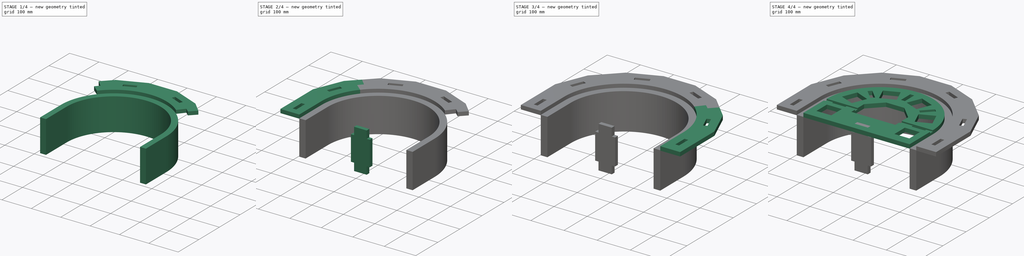
[diagram: build sequence overview — one tinted view per stage of 4, left to right]
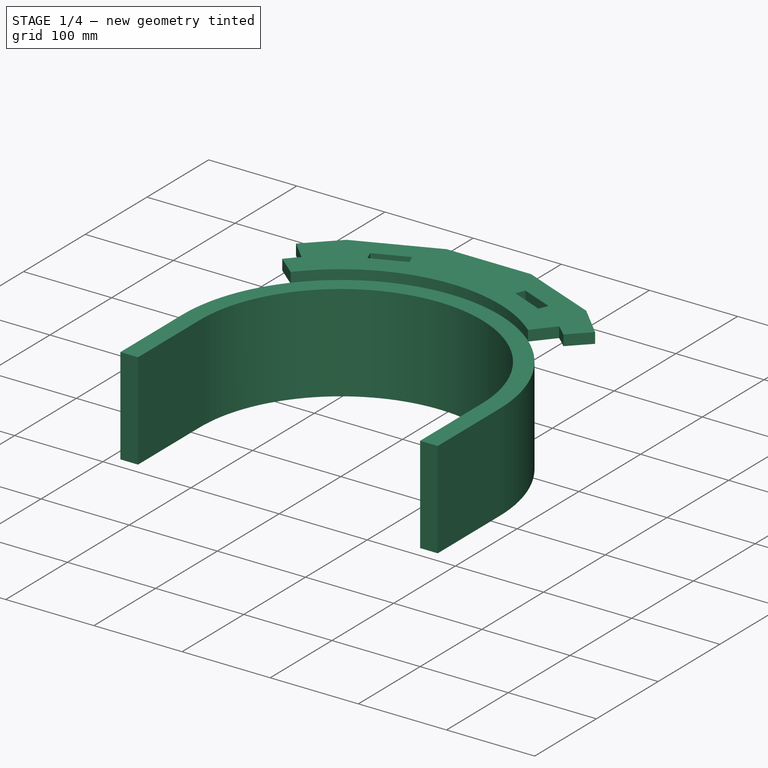
[diagram: stage 1 of 4 — iso view after this stage's code; geometry added in this stage tinted green]
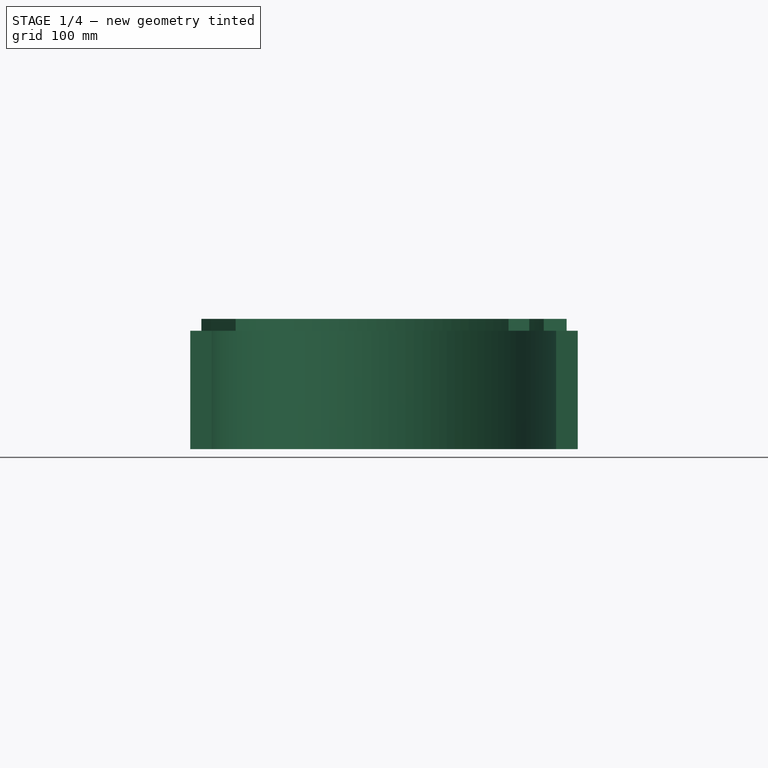
[diagram: stage 1 of 4 — front view after this stage's code; geometry added in this stage tinted green]
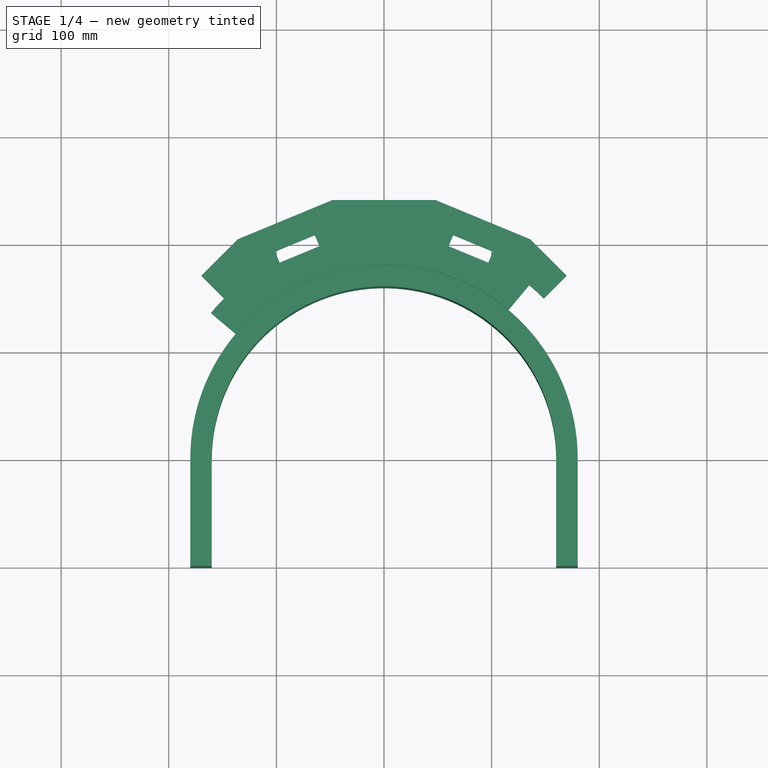
[diagram: stage 1 of 4 — top view after this stage's code; geometry added in this stage tinted green]
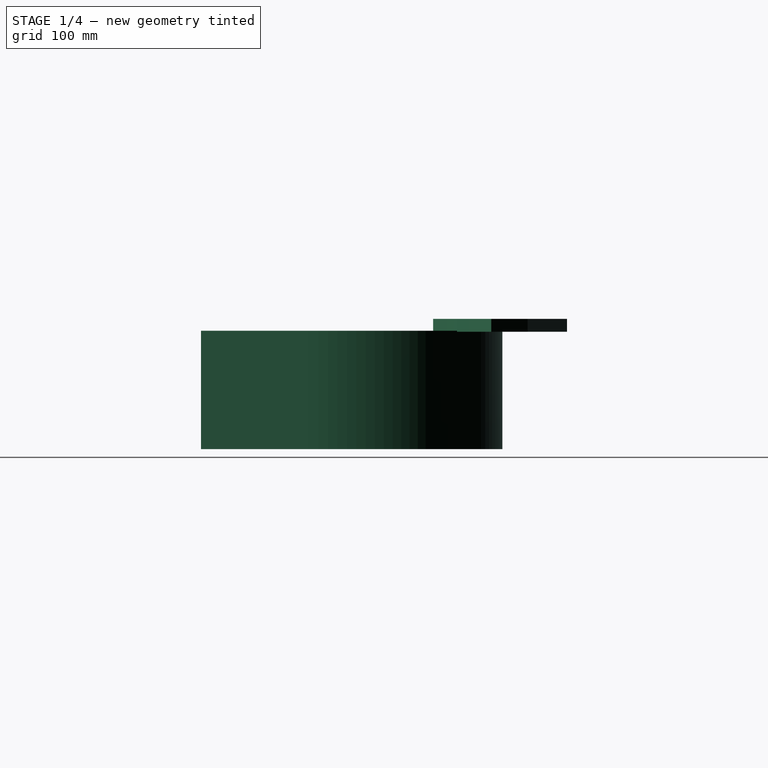
[diagram: stage 1 of 4 — right view after this stage's code; geometry added in this stage tinted green]
FCSTD DOCUMENT  (FreeCAD 0.21R30193 (Git))
Label: BendingFixture
License: All rights reserved
LicenseURL: http://en.wikipedia.org/wiki/All_rights_reserved
objects: Part::Feature×26, Part::Extrusion×10, Sketcher::SketchObject×8, App::DocumentObjectGroup×2, Part::Cut×1
note: 45 computed .brp shape members not serialized (recipe doc carries the construction recipe); baked Part::Feature solids carry a one-line shape summary decoded from their .brp

FEATURE [Part::Extrusion] Extrude007  label="FinishedPart"
  Base = -> Sketch
  Dir = (0,0,1)
  DirMode = 2
  FaceMakerClass = Part::FaceMakerBullseye
  LengthFwd = 110
  LengthRev = 0
  Placement = pos=(0,0,-103) rot=(0,0,1;0rad)
  Solid = true
  Symmetric = false
FEATURE [Part::Extrusion] Extrude008  label="OuterTemplate3"
  Base = -> Sketch008
  Dir = (0,0,1)
  DirMode = 2
  FaceMakerClass = Part::FaceMakerBullseye
  LengthFwd = 12
  LengthRev = 0
  Placement = pos=(0,0,6) rot=(0,0,1;0.785398rad)
  Solid = true
  Symmetric = false
FEATURE [Part::Extrusion] Extrude009  label="OuterTemplate4"
  Base = -> Sketch008
  Dir = (0,0,1)
  DirMode = 2
  FaceMakerClass = Part::FaceMakerBullseye
  LengthFwd = 12
  LengthRev = 0
  Placement = pos=(0,0,6) rot=(0,0,1;1.5708rad)
  Solid = true
  Symmetric = false
FEATURE [App::DocumentObjectGroup] Group  label="Duplicates"
  Group = -> [Extrude008,Extrude009]
FEATURE [Part::Feature] Extrude002001  label="OuterTemplate007"
  Placement = pos=(0,0,-6) rot=(0,0,1;0rad)
  shape: bbox 60.68 x 118.3 x 12 mm, 13 faces (baked)
FEATURE [Part::Feature] Extrude003001  label="OuterTemplate008"
  Placement = pos=(0,0,-6) rot=(0,0,1;0rad)
  shape: bbox 124.3 x 169.7 x 12 mm, 17 faces (baked)
FEATURE [Part::Feature] Extrude008001  label="OuterTemplate009"
  Placement = pos=(0,0,-6) rot=(0,0,1;0.785398rad)
  shape: bbox 188 x 102.1 x 12 mm, 17 faces (baked)
FEATURE [Part::Feature] Extrude009001  label="OuterTemplate010"
  Placement = pos=(0,0,-6) rot=(0,0,1;1.5708rad)
  shape: bbox 169.7 x 124.3 x 12 mm, 17 faces (baked)
FEATURE [Part::Feature] Extrude004001  label="OuterTemplate011"
  Placement = pos=(0,0,-6) rot=(0,0,1;0rad)
  shape: bbox 102.1 x 188.1 x 12 mm, 18 faces (baked)
FEATURE [Part::Feature] Extrude005001  label="OuterTemplate012"
  Placement = pos=(0,0,-6) rot=(0,0,1;0rad)
  shape: bbox 60 x 100 x 12 mm, 12 faces (baked)
FEATURE [Part::Feature] Extrude002002  label="OuterTemplate013"
  Placement = pos=(0,0,-97) rot=(0,0,1;0rad)
  shape: bbox 60.68 x 118.3 x 12 mm, 13 faces (baked)
FEATURE [Part::Feature] Extrude003002  label="OuterTemplate014"
  Placement = pos=(0,0,-97) rot=(0,0,1;0rad)
  shape: bbox 124.3 x 169.7 x 12 mm, 17 faces (baked)
FEATURE [Part::Feature] Extrude008002  label="OuterTemplate015"
  Placement = pos=(0,0,-97) rot=(0,0,1;0.785398rad)
  shape: bbox 188 x 102.1 x 12 mm, 17 faces (baked)
FEATURE [Part::Feature] Extrude009002  label="OuterTemplate016"
  Placement = pos=(0,0,-97) rot=(0,0,1;1.5708rad)
  shape: bbox 169.7 x 124.3 x 12 mm, 17 faces (baked)
FEATURE [Part::Feature] Extrude004002  label="OuterTemplate017"
  Placement = pos=(0,0,-97) rot=(0,0,1;0rad)
  shape: bbox 102.1 x 188.1 x 12 mm, 18 faces (baked)
FEATURE [Part::Feature] Extrude005002  label="OuterTemplate018"
  Placement = pos=(0,0,-97) rot=(0,0,1;0rad)
  shape: bbox 60 x 100 x 12 mm, 12 faces (baked)
FEATURE [Part::Feature] Extrude002003  label="OuterTemplate019"
  Placement = pos=(0,0,-109) rot=(0,0,1;0rad)
  shape: bbox 60.68 x 118.3 x 12 mm, 13 faces (baked)
FEATURE [Part::Feature] Extrude003003  label="OuterTemplate020"
  Placement = pos=(0,0,-109) rot=(0,0,1;0rad)
  shape: bbox 124.3 x 169.7 x 12 mm, 17 faces (baked)
FEATURE [Part::Feature] Extrude008003  label="OuterTemplate021"
  Placement = pos=(0,0,-109) rot=(0,0,1;0.785398rad)
  shape: bbox 188 x 102.1 x 12 mm, 17 faces (baked)
FEATURE [Part::Feature] Extrude009003  label="OuterTemplate022"
  Placement = pos=(0,0,-109) rot=(0,0,1;1.5708rad)
  shape: bbox 169.7 x 124.3 x 12 mm, 17 faces (baked)
FEATURE [Part::Feature] Extrude004003  label="OuterTemplate023"
  Placement = pos=(0,0,-109) rot=(0,0,1;0rad)
  shape: bbox 102.1 x 188.1 x 12 mm, 18 faces (baked)
FEATURE [Part::Feature] Extrude005003  label="OuterTemplate024"
  Placement = pos=(0,0,-109) rot=(0,0,1;0rad)
  shape: bbox 60 x 100 x 12 mm, 12 faces (baked)
FEATURE [Part::Feature] Extrude006001  label="VerticalSpacer001"
  Placement = pos=(-120,-6,-45.5) rot=(0,0,1;0rad)
  shape: bbox 60 x 12 x 127 mm, 14 faces (baked)
FEATURE [Part::Feature] Extrude006002  label="VerticalSpacer002"
  Placement = pos=(120,-6,-45.5) rot=(0,0,1;0rad)
  shape: bbox 60 x 12 x 127 mm, 14 faces (baked)
FEATURE [Part::Feature] Extrude006003  label="VerticalSpacer003"
  Placement = pos=(84.75,84.75,-45.5) rot=(0,0,1;0.785398rad)
  shape: bbox 50.91 x 50.91 x 127 mm, 14 faces (baked)
FEATURE [Part::Feature] Extrude006004  label="VerticalSpacer004"
  Placement = pos=(-84.75,84.75,-45.5) rot=(0,0,1;-0.785398rad)
  shape: bbox 50.91 x 50.91 x 127 mm, 14 faces (baked)
FEATURE [Part::Feature] Extrude006005  label="VerticalSpacer005"
  Placement = pos=(0,120,-45.5) rot=(0,0,1;1.5708rad)
  shape: bbox 12 x 60 x 127 mm, 14 faces (baked)
FEATURE [Part::Feature] Cut001  label="InnerTemplate001"
  Placement = pos=(0,0,-6) rot=(0,0,1;0rad)
  shape: bbox 320 x 260 x 12 mm, 81 faces (baked)
FEATURE [Part::Feature] Cut002  label="InnerTemplate002"
  Placement = pos=(0,0,-85) rot=(0,1,0;3.14159rad)
  shape: bbox 320 x 260 x 12 mm, 81 faces (baked)
FEATURE [Part::Feature] Cut003  label="InnerTemplate003"
  Placement = pos=(0,0,-97) rot=(0,1,0;3.14159rad)
  shape: bbox 320 x 260 x 12 mm, 81 faces (baked)
FEATURE [App::DocumentObjectGroup] Group001  label="Copies"
  Group = -> [Extrude002001,Extrude003001,Extrude008001,Extrude009001,Extrude004001,Extrude005001,Extrude002002,Extrude003002,Extrude008002,Extrude009002,Extrude004002,Extrude005002,Extrude002003,Extrude003003,Extrude008003,Extrude009003,Extrude004003,Extrude005003,Extrude006001,Extrude006002,Extrude006003,Extrude006004,Extrude006005,Cut001,Cut002,Cut003]
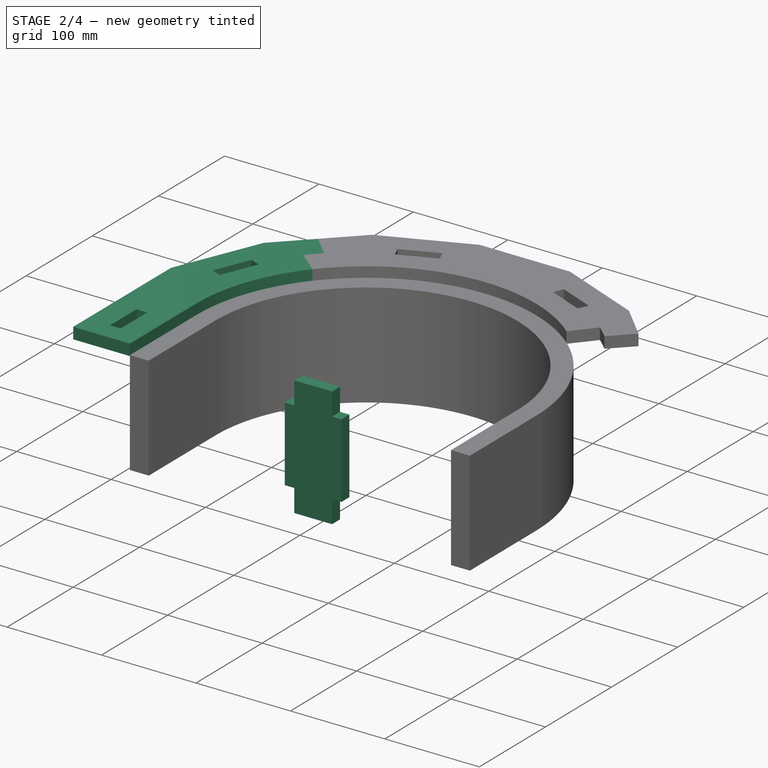
[diagram: stage 2 of 4 — iso view after this stage's code; geometry added in this stage tinted green]
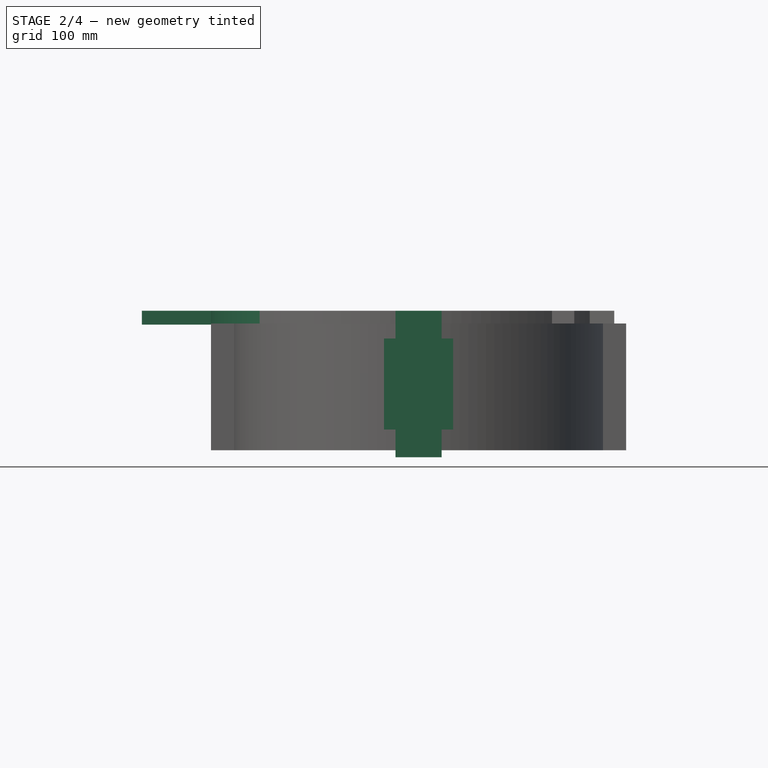
[diagram: stage 2 of 4 — front view after this stage's code; geometry added in this stage tinted green]
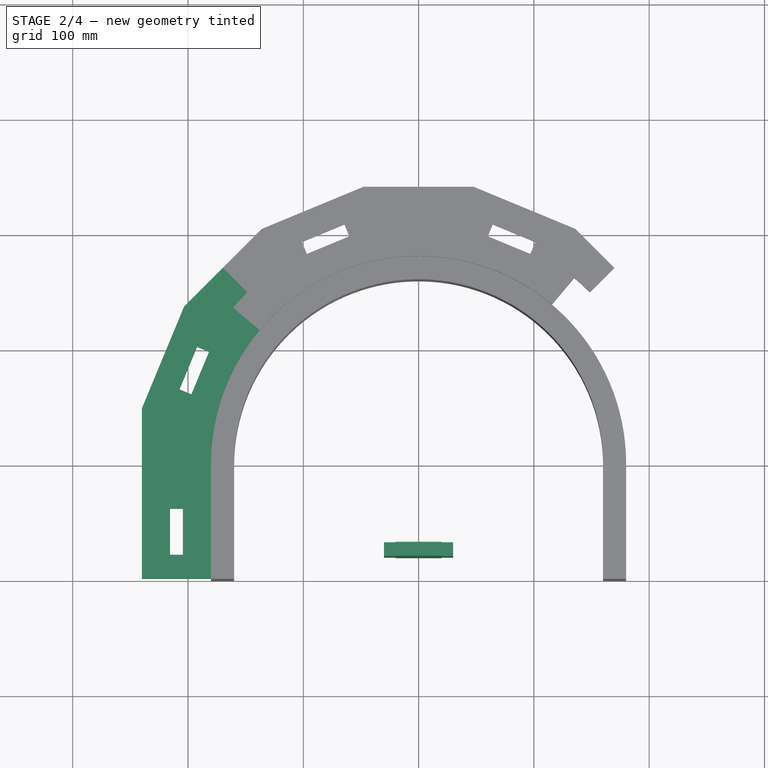
[diagram: stage 2 of 4 — top view after this stage's code; geometry added in this stage tinted green]
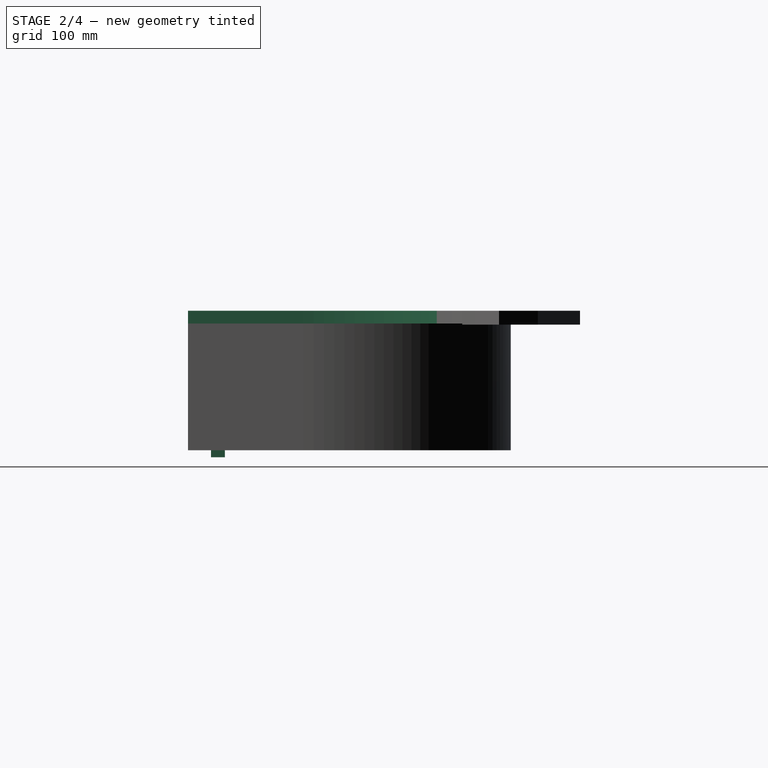
[diagram: stage 2 of 4 — right view after this stage's code; geometry added in this stage tinted green]
FEATURE [Part::Extrusion] Extrude004  label="OuterTemplate5"
  Base = -> Sketch011
  Dir = (0,0,1)
  DirMode = 2
  FaceMakerClass = Part::FaceMakerBullseye
  LengthFwd = 12
  LengthRev = 0
  Placement = pos=(0,0,6) rot=(0,0,1;0rad)
  Solid = true
  Symmetric = false
FEATURE [Part::Extrusion] Extrude005  label="OuterTemplate6"
  Base = -> Sketch006
  Dir = (0,0,1)
  DirMode = 2
  FaceMakerClass = Part::FaceMakerBullseye
  LengthFwd = 12
  LengthRev = 0
  Placement = pos=(0,0,6) rot=(0,0,1;0rad)
  Solid = true
  Symmetric = false
FEATURE [Part::Extrusion] Extrude006  label="VerticalSpacer"
  Base = -> Sketch013
  Dir = (0,-1,2e-16)
  DirMode = 2
  FaceMakerClass = Part::FaceMakerBullseye
  LengthFwd = 12
  LengthRev = 0
  Placement = pos=(0,-74,-45.5) rot=(0,0,1;0rad)
  Solid = true
  Symmetric = true
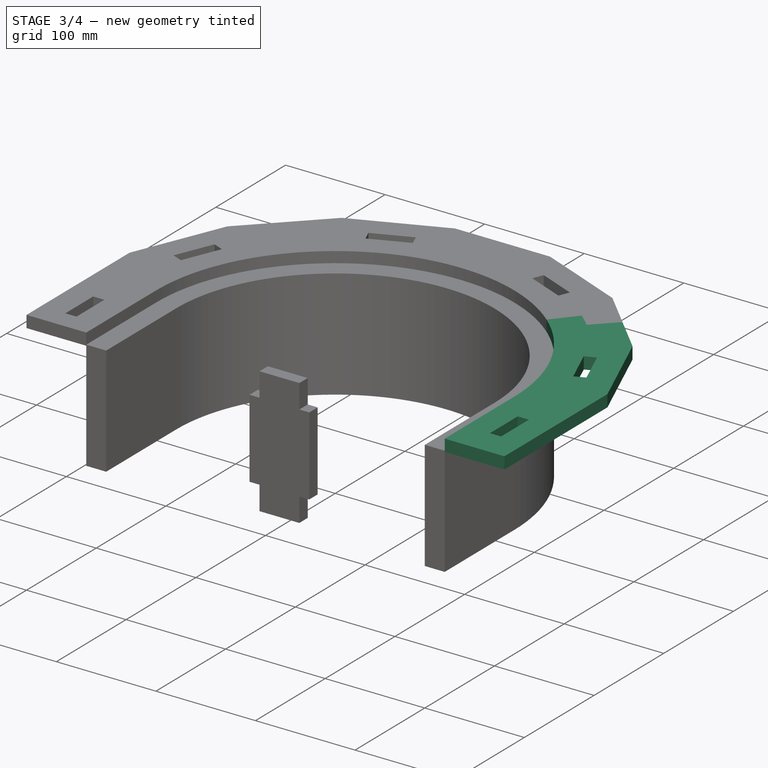
[diagram: stage 3 of 4 — iso view after this stage's code; geometry added in this stage tinted green]
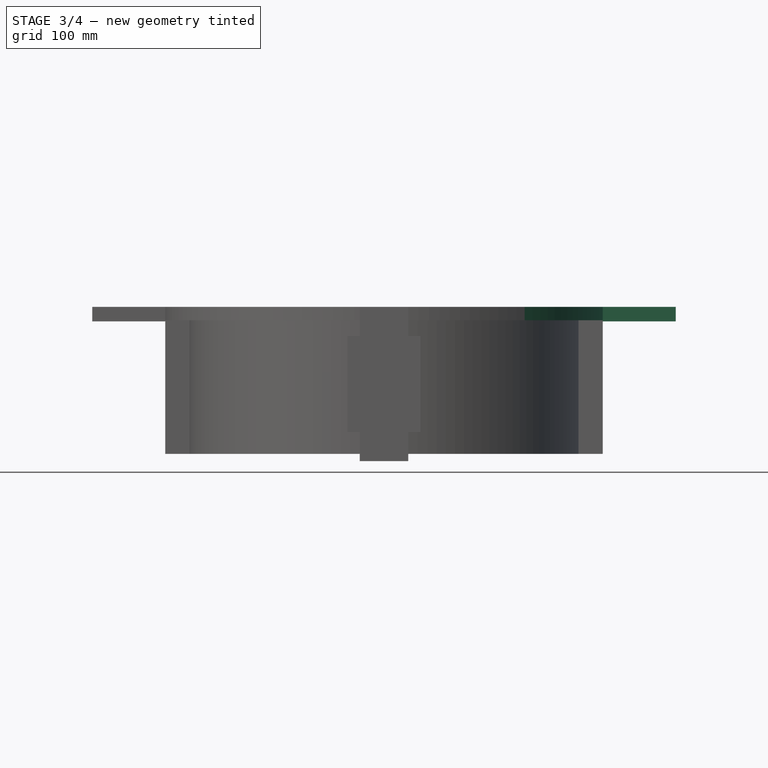
[diagram: stage 3 of 4 — front view after this stage's code; geometry added in this stage tinted green]
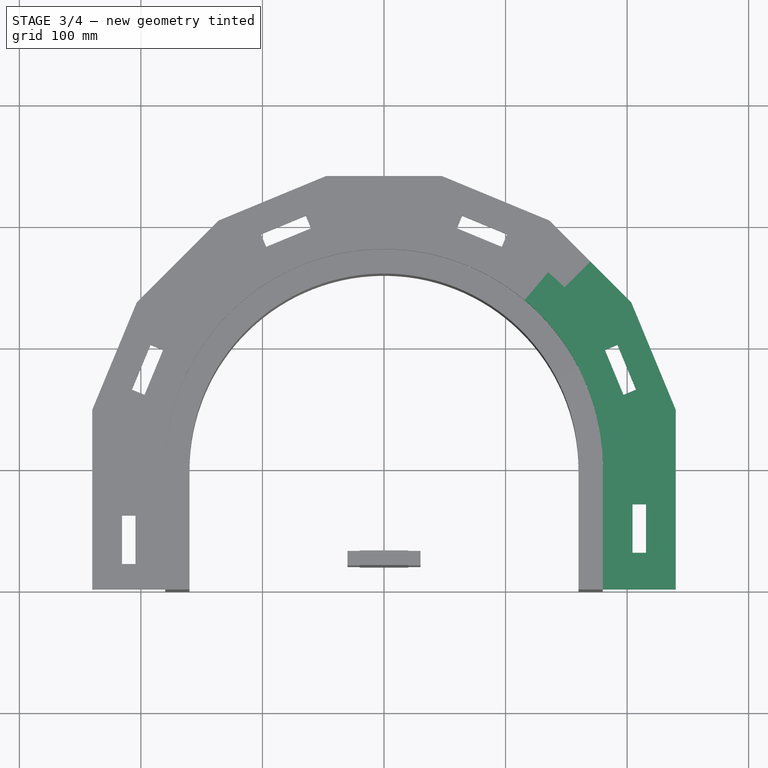
[diagram: stage 3 of 4 — top view after this stage's code; geometry added in this stage tinted green]
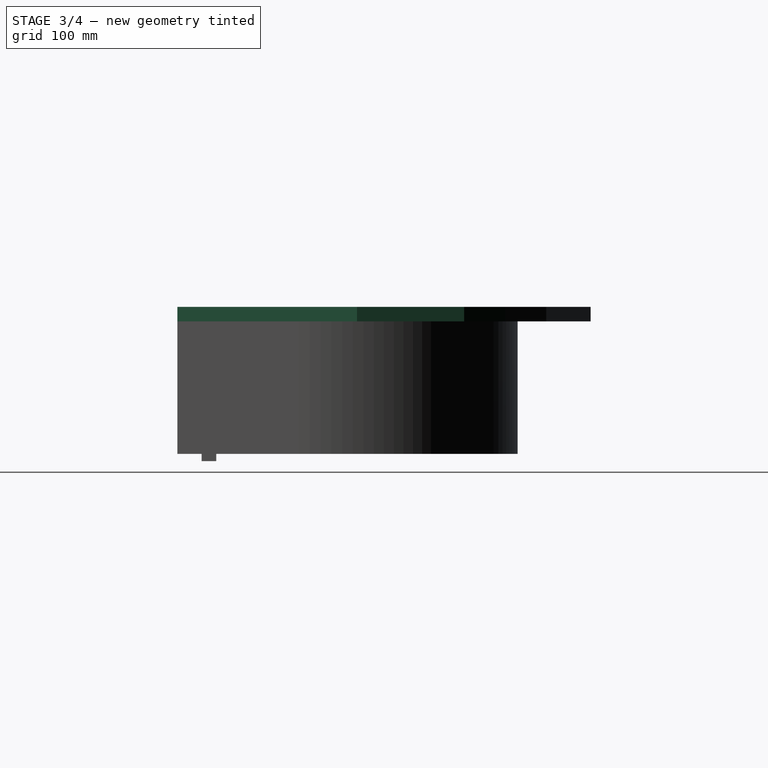
[diagram: stage 3 of 4 — right view after this stage's code; geometry added in this stage tinted green]
FEATURE [Part::Extrusion] Extrude002  label="OuterTemplate1"
  Base = -> Sketch001
  Dir = (0,0,1)
  DirMode = 2
  FaceMakerClass = Part::FaceMakerBullseye
  LengthFwd = 12
  LengthRev = 0
  Placement = pos=(0,0,6) rot=(0,0,1;0rad)
  Solid = true
  Symmetric = false
FEATURE [Part::Extrusion] Extrude003  label="OuterTemplate2"
  Base = -> Sketch008
  Dir = (0,0,1)
  DirMode = 2
  FaceMakerClass = Part::FaceMakerBullseye
  LengthFwd = 12
  LengthRev = 0
  Placement = pos=(0,0,6) rot=(0,0,1;0rad)
  Solid = true
  Symmetric = false
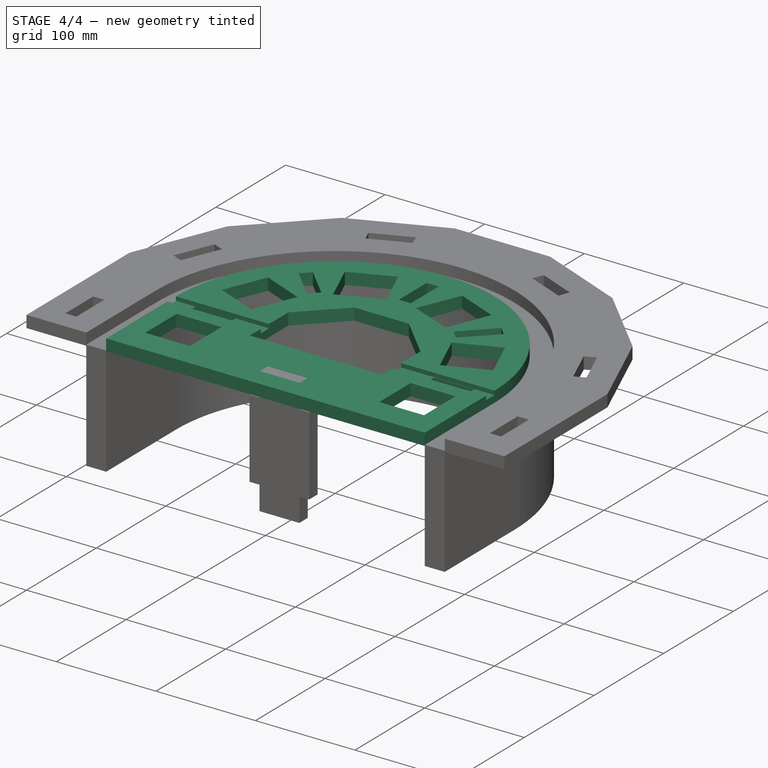
[diagram: stage 4 of 4 — iso view after this stage's code; geometry added in this stage tinted green]
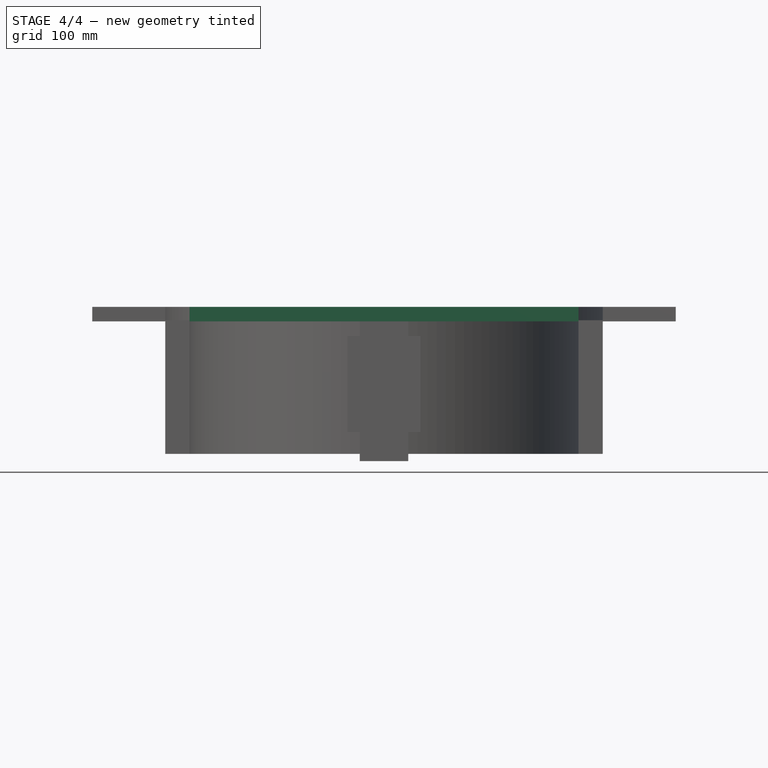
[diagram: stage 4 of 4 — front view after this stage's code; geometry added in this stage tinted green]
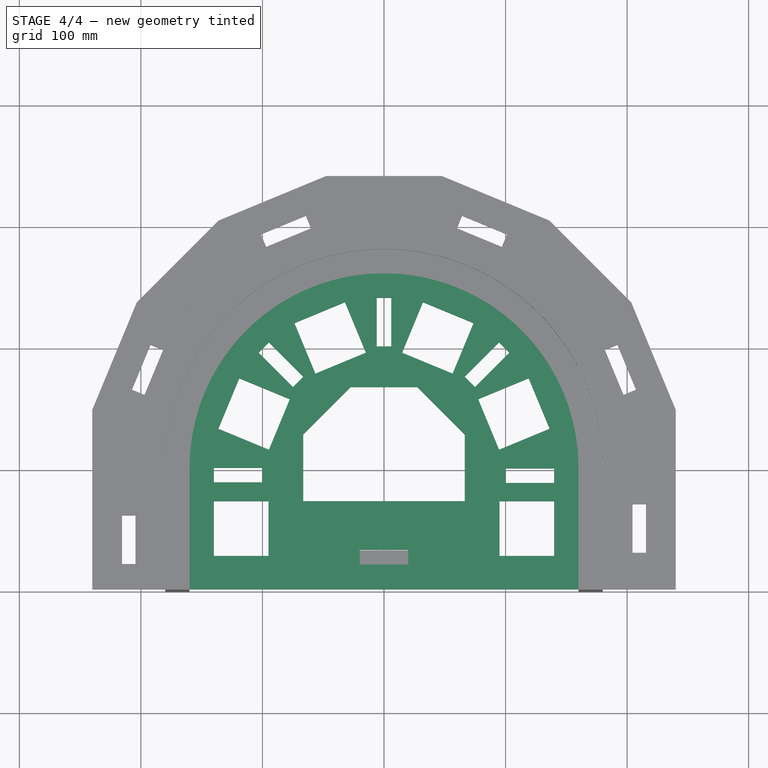
[diagram: stage 4 of 4 — top view after this stage's code; geometry added in this stage tinted green]
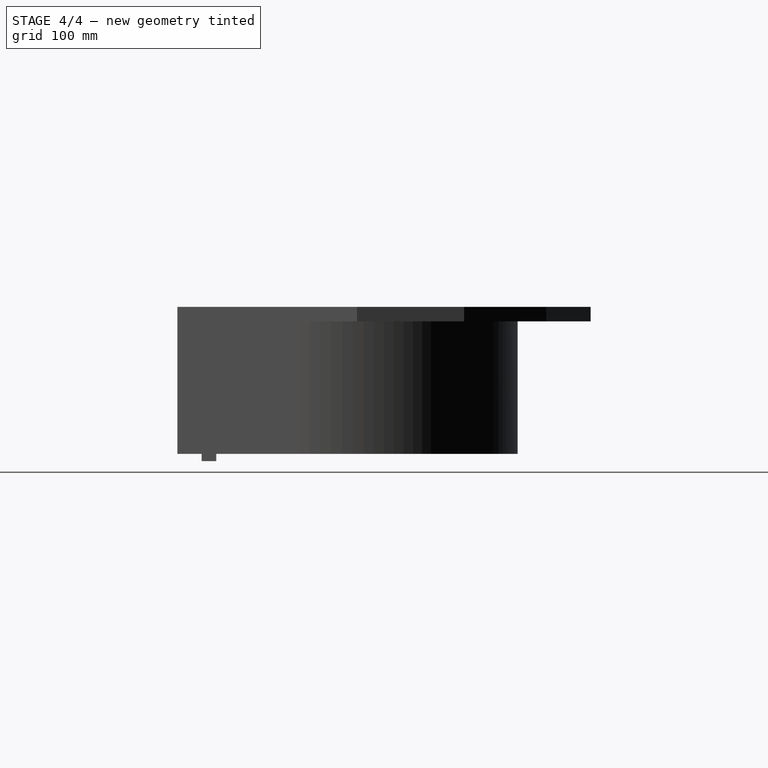
[diagram: stage 4 of 4 — right view after this stage's code; geometry added in this stage tinted green]
FEATURE [Sketcher::SketchObject] Sketch  label="FinishedPartShape"
  FullyConstrained = true
  sketch-geometry (8):
    g0: ArcOfCircle CenterX=0 CenterY=0 CenterZ=0 NormalX=0 NormalY=0 NormalZ=1 AngleXU=0 Radius=160 StartAngle=0 EndAngle=3.14159
    g1: ArcOfCircle CenterX=0 CenterY=0 CenterZ=0 NormalX=0 NormalY=0 NormalZ=1 AngleXU=0 Radius=180 StartAngle=0 EndAngle=3.14159
    g2: LineSegment StartX=-180 StartY=2.2e-14 StartZ=0 EndX=-180 EndY=-100 EndZ=0
    g3: LineSegment StartX=-160 StartY=0 StartZ=0 EndX=-160 EndY=-100 EndZ=0
    g4: LineSegment StartX=-180 StartY=-100 StartZ=0 EndX=-160 EndY=-100 EndZ=0
    g5: LineSegment StartX=160 StartY=0 StartZ=0 EndX=160 EndY=-100 EndZ=0
    g6: LineSegment StartX=180 StartY=0 StartZ=0 EndX=180 EndY=-100 EndZ=0
    g7: LineSegment StartX=180 StartY=-100 StartZ=0 EndX=160 EndY=-100 EndZ=0
  constraints (24):
    c: Coincident(g0,g-1)
    c: PointOnObject(g0,g-1)
    c: PointOnObject(g0,g-1)
    c: Coincident(g1,g0)
    c: PointOnObject(g1,g-1)
    c: PointOnObject(g1,g-1)
    c: Diameter(g1) = 360
    c: Diameter(g0) = 320
    c: Coincident(g2,g1)
    c: Vertical(g2)
    c: Coincident(g3,g0)
    c: Vertical(g3)
    c: Coincident(g4,g2)
    c: Coincident(g4,g3)
    c: Horizontal(g4)
    c: Coincident(g5,g0)
    c: Vertical(g5)
    c: Coincident(g6,g1)
    c: Vertical(g6)
    c: Coincident(g7,g6)
    c: Coincident(g7,g5)
    c: Horizontal(g7)
    c: Horizontal(g5,g3)
    c: DistanceY(g5,g0) = 100
FEATURE [Sketcher::SketchObject] Sketch001  label="OuterTemplate1Shape"
  FullyConstrained = true
  sketch-geometry (16):
    g0: LineSegment StartX=180 StartY=-100 StartZ=0 EndX=180 EndY=0 EndZ=0
    g1: LineSegment StartX=180 StartY=-100 StartZ=0 EndX=240 EndY=-100 EndZ=0
    g2: LineSegment StartX=240 StartY=-100 StartZ=0 EndX=240 EndY=0 EndZ=0
    g3: ArcOfCircle CenterX=0 CenterY=0 CenterZ=0 NormalX=0 NormalY=0 NormalZ=1 AngleXU=0 Radius=180 StartAngle=0 EndAngle=0.0872665
    g4: LineSegment StartX=240 StartY=0 StartZ=0 EndX=210 EndY=0 EndZ=0
    g5: ArcOfCircle CenterX=0 CenterY=0 CenterZ=0 NormalX=0 NormalY=0 NormalZ=1 AngleXU=0 Radius=210 StartAngle=0 EndAngle=0.0872665
    g6: LineSegment StartX=179.315 StartY=15.688 StartZ=0 EndX=209.201 EndY=18.3027 EndZ=0
    g7: LineSegment StartX=0 StartY=0 StartZ=0 EndX=179.315 EndY=15.688 EndZ=0
    g8: LineSegment StartX=204.4 StartY=-30 StartZ=0 EndX=215.6 EndY=-30 EndZ=0
    g9: LineSegment StartX=215.6 StartY=-30 StartZ=0 EndX=215.6 EndY=-70 EndZ=0
    g10: LineSegment StartX=215.6 StartY=-70 StartZ=0 EndX=204.4 EndY=-70 EndZ=0
    g11: LineSegment StartX=204.4 StartY=-70 StartZ=0 EndX=204.4 EndY=-30 EndZ=0
    g12: LineSegment StartX=180 StartY=-70 StartZ=0 EndX=204.4 EndY=-70 EndZ=0
    g13: LineSegment StartX=215.6 StartY=-70 StartZ=0 EndX=240 EndY=-70 EndZ=0
    g14: LineSegment StartX=215.6 StartY=-30 StartZ=0 EndX=215.6 EndY=0 EndZ=0
    g15: LineSegment StartX=215.6 StartY=-70 StartZ=0 EndX=215.6 EndY=-100 EndZ=0
  constraints (47):
    c: Vertical(g0)
    c: Coincident(g1,g0)
    c: Horizontal(g1)
    c: Coincident(g2,g1)
    c: PointOnObject(g2,g-1)
    c: Vertical(g2)
    c: PointOnObject(g0,g-1)
    c: Coincident(g3,g-1)
    c: Coincident(g3,g0)
    c: Coincident(g4,g2)
    c: PointOnObject(g4,g-1)
    c: Coincident(g5,g3)
    c: Coincident(g5,g4)
    c: Coincident(g6,g3)
    c: Coincident(g6,g5)
    c: Coincident(g7,g3)
    c: Coincident(g7,g3)
    c: Parallel(g6,g7)
    c: Angle(g-1,g7) = 0.0872665
    c: Radius(g3) = 180
    c: Radius(g5) = 210
    c: DistanceX(g3,g2) = 240
    c: DistanceY(g0,g3) = 100
    c: Coincident(g8,g9)
    c: Coincident(g9,g10)
    c: Coincident(g10,g11)
    c: Coincident(g11,g8)
    c: Horizontal(g8)
    c: Horizontal(g10)
    c: Vertical(g9)
    c: Vertical(g11)
    c: Distance(g10) = 11.2
    c: PointOnObject(g12,g0)
    c: Coincident(g12,g10)
    c: Horizontal(g12)
    c: Coincident(g13,g9)
    c: PointOnObject(g13,g2)
    c: Horizontal(g13)
    c: Coincident(g14,g8)
    c: PointOnObject(g14,g4)
    c: Vertical(g14)
    c: Coincident(g15,g9)
    c: PointOnObject(g15,g1)
    c: Vertical(g15)
    c: Equal(g12,g13)
    c: Equal(g14,g15)
    c: Distance(g9) = 40
FEATURE [Sketcher::SketchObject] Sketch006  label="OuterTemplate6Shape"
  FullyConstrained = true
  sketch-geometry (15):
    g0: LineSegment StartX=-240 StartY=0 StartZ=0 EndX=-240 EndY=-100 EndZ=0
    g1: LineSegment StartX=-240 StartY=-100 StartZ=0 EndX=-180 EndY=-100 EndZ=0
    g2: LineSegment StartX=-180 StartY=-100 StartZ=0 EndX=-180 EndY=-18.3726 EndZ=0
    g3: LineSegment StartX=-180 StartY=-18.3726 StartZ=0 EndX=-210 EndY=-18.3726 EndZ=0
    g4: LineSegment StartX=-210 StartY=-18.3726 StartZ=0 EndX=-210 EndY=0 EndZ=0
    g5: LineSegment StartX=-210 StartY=0 StartZ=0 EndX=-240 EndY=0 EndZ=0
    g6: LineSegment StartX=-210 StartY=-18.3726 StartZ=0 EndX=0 EndY=0 EndZ=0
    g7: LineSegment StartX=-215.6 StartY=-39.1863 StartZ=0 EndX=-204.4 EndY=-39.1863 EndZ=0
    g8: LineSegment StartX=-204.4 StartY=-39.1863 StartZ=0 EndX=-204.4 EndY=-79.1863 EndZ=0
    g9: LineSegment StartX=-204.4 StartY=-79.1863 StartZ=0 EndX=-215.6 EndY=-79.1863 EndZ=0
    g10: LineSegment StartX=-215.6 StartY=-79.1863 StartZ=0 EndX=-215.6 EndY=-39.1863 EndZ=0
    g11: LineSegment StartX=-204.4 StartY=-39.1863 StartZ=0 EndX=-204.4 EndY=-18.3726 EndZ=0
    g12: LineSegment StartX=-204.4 StartY=-79.1863 StartZ=0 EndX=-204.4 EndY=-100 EndZ=0
    g13: LineSegment StartX=-215.6 StartY=-79.1863 StartZ=0 EndX=-240 EndY=-79.1863 EndZ=0
    g14: LineSegment StartX=-204.4 StartY=-79.1863 StartZ=0 EndX=-180 EndY=-79.1863 EndZ=0
  constraints (44):
    c: Vertical(g0)
    c: Coincident(g1,g0)
    c: Horizontal(g1)
    c: Coincident(g2,g1)
    c: Vertical(g2)
    c: Coincident(g3,g2)
    c: Horizontal(g3)
    c: Coincident(g4,g3)
    c: PointOnObject(g4,g-1)
    c: Vertical(g4)
    c: Coincident(g5,g4)
    c: Coincident(g5,g0)
    c: PointOnObject(g0,g-1)
    c: DistanceX(g2,g-1) = 180
    c: DistanceX(g0,g-1) = 240
    c: DistanceY(g1,g-1) = 100
    c: Coincident(g6,g3)
    c: Coincident(g6,g-1)
    c: Angle(g6,g-1) = 3.05433
    c: DistanceX(g4,g6) = 210
    c: Coincident(g7,g8)
    c: Coincident(g8,g9)
    c: Coincident(g9,g10)
    c: Coincident(g10,g7)
    c: Horizontal(g7)
    c: Horizontal(g9)
    c: Vertical(g8)
    c: Vertical(g10)
    c: Coincident(g11,g7)
    c: PointOnObject(g11,g3)
    c: Vertical(g11)
    c: Coincident(g12,g8)
    c: PointOnObject(g12,g1)
    c: Vertical(g12)
    c: Coincident(g13,g9)
    c: PointOnObject(g13,g0)
    c: Horizontal(g13)
    c: Coincident(g14,g8)
    c: PointOnObject(g14,g2)
    c: Horizontal(g14)
    c: Equal(g11,g12)
    c: Equal(g14,g13)
    c: Distance(g9) = 11.2
    c: Distance(g8) = 40
FEATURE [Sketcher::SketchObject] Sketch007  label="InnerTemplateBaseShape"
  FullyConstrained = true
  sketch-geometry (81):
    g0: ArcOfCircle CenterX=0 CenterY=0 CenterZ=0 NormalX=0 NormalY=0 NormalZ=1 AngleXU=0 Radius=160 StartAngle=0 EndAngle=3.14159
    g1: LineSegment StartX=-160 StartY=0 StartZ=0 EndX=-160 EndY=-100 EndZ=0
    g2: LineSegment StartX=-160 StartY=-100 StartZ=0 EndX=160 EndY=-100 EndZ=0
    g3: LineSegment StartX=160 StartY=-100 StartZ=0 EndX=160 EndY=0 EndZ=0
    g4: LineSegment StartX=-140 StartY=-72.5 StartZ=0 EndX=-95 EndY=-72.5 EndZ=0
    g5: LineSegment StartX=-95 StartY=-72.5 StartZ=0 EndX=-95 EndY=-27.5 EndZ=0
    g6: LineSegment StartX=-140 StartY=-27.5 StartZ=0 EndX=-95 EndY=-27.5 EndZ=0
    g7: LineSegment StartX=-136.272 StartY=32.092 StartZ=0 EndX=-94.6976 EndY=14.8712 EndZ=0
    g8: LineSegment StartX=-94.6976 StartY=14.8712 StartZ=0 EndX=-77.4768 EndY=56.4458 EndZ=0
    g9: LineSegment StartX=-77.4768 StartY=56.4458 StartZ=0 EndX=-119.051 EndY=73.6665 EndZ=0
    g10: LineSegment StartX=-32.092 StartY=136.272 StartZ=0 EndX=-14.8712 EndY=94.6976 EndZ=0
    g11: LineSegment StartX=-14.8712 StartY=94.6976 StartZ=0 EndX=-56.4458 EndY=77.4768 EndZ=0
    g12: LineSegment StartX=-56.4458 StartY=77.4768 StartZ=0 EndX=-73.6665 EndY=119.051 EndZ=0
    g13: LineSegment StartX=73.6665 StartY=119.051 StartZ=0 EndX=56.4458 EndY=77.4768 EndZ=0
    g14: LineSegment StartX=56.4458 StartY=77.4768 StartZ=0 EndX=14.8712 EndY=94.6976 EndZ=0
    g15: LineSegment StartX=14.8712 StartY=94.6976 StartZ=0 EndX=32.092 EndY=136.272 EndZ=0
    g16: LineSegment StartX=136.272 StartY=32.092 StartZ=0 EndX=94.6976 EndY=14.8712 EndZ=0
    g17: LineSegment StartX=94.6976 StartY=14.8712 StartZ=0 EndX=77.4768 EndY=56.4458 EndZ=0
    g18: LineSegment StartX=77.4768 StartY=56.4458 StartZ=0 EndX=119.051 EndY=73.6665 EndZ=0
    g19: LineSegment StartX=94.9991 StartY=-27.5 StartZ=0 EndX=139.999 EndY=-27.5 EndZ=0
    g20: LineSegment StartX=139.999 StartY=-72.5 StartZ=0 EndX=94.9991 EndY=-72.5 EndZ=0
    g21: LineSegment StartX=94.9991 StartY=-72.5 StartZ=0 EndX=94.9991 EndY=-27.5 EndZ=0
    g22: ArcOfCircle CenterX=0 CenterY=0 CenterZ=0 NormalX=0 NormalY=0 NormalZ=1 AngleXU=0 Radius=140 StartAngle=6.27961 EndAngle=9.42478
    g23: LineSegment StartX=-140 StartY=0 StartZ=0 EndX=-140 EndY=-27.5 EndZ=0
    g24: LineSegment StartX=139.999 StartY=-27.5 StartZ=0 EndX=139.999 EndY=-0.5 EndZ=0
    g25: LineSegment StartX=-119.051 StartY=73.6665 StartZ=0 EndX=-127.662 EndY=52.8792 EndZ=0
    g26: LineSegment StartX=-127.662 StartY=52.8792 StartZ=0 EndX=-136.272 EndY=32.092 EndZ=0
    g27: LineSegment StartX=-73.6665 StartY=119.051 StartZ=0 EndX=-52.8792 EndY=127.662 EndZ=0
    g28: LineSegment StartX=-52.8792 StartY=127.662 StartZ=0 EndX=-32.092 EndY=136.272 EndZ=0
    g29: LineSegment StartX=32.092 StartY=136.272 StartZ=0 EndX=52.8792 EndY=127.662 EndZ=0
    g30: LineSegment StartX=52.8792 StartY=127.662 StartZ=0 EndX=73.6665 EndY=119.051 EndZ=0
    g31: LineSegment StartX=119.051 StartY=73.6665 StartZ=0 EndX=127.662 EndY=52.8792 EndZ=0
    g32: LineSegment StartX=127.662 StartY=52.8792 StartZ=0 EndX=136.272 EndY=32.092 EndZ=0
    g33: LineSegment StartX=-127.662 StartY=52.8792 StartZ=0 EndX=0 EndY=0 EndZ=0
    g34: LineSegment StartX=0 StartY=0 StartZ=0 EndX=-52.8792 EndY=127.662 EndZ=0
    g35: LineSegment StartX=0 StartY=0 StartZ=0 EndX=52.8792 EndY=127.662 EndZ=0
    g36: LineSegment StartX=0 StartY=0 StartZ=0 EndX=127.662 EndY=52.8792 EndZ=0
    g37: LineSegment StartX=139.999 StartY=-27.5 StartZ=0 EndX=139.999 EndY=-50 EndZ=0
    g38: LineSegment StartX=139.999 StartY=-50 StartZ=0 EndX=139.999 EndY=-72.5 EndZ=0
    g39: LineSegment StartX=-140 StartY=-27.5 StartZ=0 EndX=-140 EndY=-50 EndZ=0
    g40: LineSegment StartX=-140 StartY=-50 StartZ=0 EndX=-140 EndY=-72.5 EndZ=0
    g41: LineSegment StartX=27.5 StartY=-66.3909 StartZ=0 EndX=66.3909 EndY=-27.5 EndZ=0
    g42: LineSegment StartX=66.3909 StartY=-27.5 StartZ=0 EndX=66.3909 EndY=27.5 EndZ=0
    g43: LineSegment StartX=66.3909 StartY=27.5 StartZ=0 EndX=27.5 EndY=66.3909 EndZ=0
    g44: LineSegment StartX=27.5 StartY=66.3909 StartZ=0 EndX=-27.5 EndY=66.3909 EndZ=0
    g45: LineSegment StartX=-27.5 StartY=66.3909 StartZ=0 EndX=-66.3909 EndY=27.5 EndZ=0
    g46: LineSegment StartX=-66.3909 StartY=27.5 StartZ=0 EndX=-66.3909 EndY=-27.5 EndZ=0
    g47: LineSegment StartX=-66.3909 StartY=-27.5 StartZ=0 EndX=-27.5 EndY=-66.3909 EndZ=0
    g48: LineSegment StartX=-27.5 StartY=-66.3909 StartZ=0 EndX=27.5 EndY=-66.3909 EndZ=0
    g49: Circle CenterX=0 CenterY=0 CenterZ=0 NormalX=0 NormalY=0 NormalZ=1 AngleXU=0 Radius=71.861
    g50: LineSegment StartX=-66.3909 StartY=-27.5 StartZ=0 EndX=66.3909 EndY=-27.5 EndZ=0
    g51: LineSegment StartX=-94.6614 StartY=103.147 StartZ=0 EndX=-66.3771 EndY=74.8624 EndZ=0
    g52: LineSegment StartX=-66.3771 StartY=74.8624 StartZ=0 EndX=-74.8624 EndY=66.3771 EndZ=0
    g53: LineSegment StartX=-74.8624 StartY=66.3771 StartZ=0 EndX=-103.147 EndY=94.6614 EndZ=0
    g54: LineSegment StartX=-103.147 StartY=94.6614 StartZ=0 EndX=-98.904 EndY=98.904 EndZ=0
    g55: LineSegment StartX=-98.904 StartY=98.904 StartZ=0 EndX=-94.6614 EndY=103.147 EndZ=0
    g56: LineSegment StartX=-98.904 StartY=98.904 StartZ=0 EndX=0 EndY=0 EndZ=0
    g57: LineSegment StartX=-6 StartY=139.871 StartZ=0 EndX=6 EndY=139.871 EndZ=0
    g58: LineSegment StartX=6 StartY=139.871 StartZ=0 EndX=6 EndY=99.8714 EndZ=0
    g59: LineSegment StartX=6 StartY=99.8714 StartZ=0 EndX=-6 EndY=99.8714 EndZ=0
    g60: LineSegment StartX=-6 StartY=99.8714 StartZ=0 EndX=-6 EndY=139.871 EndZ=0
    g61: LineSegment StartX=103.147 StartY=94.6614 StartZ=0 EndX=74.8624 EndY=66.3771 EndZ=0
    g62: LineSegment StartX=74.8624 StartY=66.3771 StartZ=0 EndX=66.3771 EndY=74.8624 EndZ=0
    g63: LineSegment StartX=66.3771 StartY=74.8624 StartZ=0 EndX=94.6614 EndY=103.147 EndZ=0
    g64: LineSegment StartX=94.6614 StartY=103.147 StartZ=0 EndX=98.904 EndY=98.904 EndZ=0
    g65: LineSegment StartX=98.904 StartY=98.904 StartZ=0 EndX=103.147 EndY=94.6614 EndZ=0
    g66: LineSegment StartX=98.904 StartY=98.904 StartZ=0 EndX=0 EndY=0 EndZ=0
    g67: LineSegment StartX=-140 StartY=0 StartZ=0 EndX=-100 EndY=0 EndZ=0
    g68: LineSegment StartX=-100 StartY=0 StartZ=0 EndX=-100 EndY=-12 EndZ=0
    g69: LineSegment StartX=-100 StartY=-12 StartZ=0 EndX=-140 EndY=-12 EndZ=0
    g70: LineSegment StartX=-140 StartY=-12 StartZ=0 EndX=-140 EndY=0 EndZ=0
    g71: LineSegment StartX=139.999 StartY=-0.5 StartZ=0 EndX=99.9991 EndY=-0.5 EndZ=0
    g72: LineSegment StartX=99.9991 StartY=-0.5 StartZ=0 EndX=99.9991 EndY=-12.5 EndZ=0
    g73: LineSegment StartX=99.9991 StartY=-12.5 StartZ=0 EndX=139.999 EndY=-12.5 EndZ=0
    g74: LineSegment StartX=139.999 StartY=-12.5 StartZ=0 EndX=139.999 EndY=-0.5 EndZ=0
    g75: LineSegment StartX=-20 StartY=-67.5 StartZ=0 EndX=-20 EndY=-79.5 EndZ=0
    g76: LineSegment StartX=-20 StartY=-79.5 StartZ=0 EndX=20 EndY=-79.5 EndZ=0
    g77: LineSegment StartX=20 StartY=-79.5 StartZ=0 EndX=20 EndY=-67.5 EndZ=0
    g78: LineSegment StartX=20 StartY=-67.5 StartZ=0 EndX=-20 EndY=-67.5 EndZ=0
    g79: GeomPoint X=0 Y=-73.5 Z=0
    g80: GeomPoint X=-70.6197 Y=70.6197 Z=0
  constraints (225):
    c: Coincident(g0,g-1)
    c: PointOnObject(g0,g-1)
    c: PointOnObject(g0,g-1)
    c: Radius(g0) = 160
    c: Coincident(g1,g0)
    c: Vertical(g1)
    c: Coincident(g2,g1)
    c: Horizontal(g2)
    c: Coincident(g3,g2)
    c: Coincident(g3,g0)
    c: Vertical(g3)
    c: Coincident(g4,g40)
    c: Horizontal(g4)
    c: Coincident(g5,g4)
    c: Vertical(g5)
    c: Coincident(g6,g39)
    c: Coincident(g6,g5)
    c: Horizontal(g6)
    c: Coincident(g7,g26)
    c: Coincident(g8,g7)
    c: Coincident(g9,g8)
    c: Coincident(g9,g25)
    c: Coincident(g10,g28)
    c: Coincident(g11,g10)
    c: Coincident(g12,g11)
    c: Coincident(g12,g27)
    c: Coincident(g13,g30)
    c: Coincident(g14,g13)
    c: Coincident(g15,g14)
    c: Coincident(g15,g29)
    c: Parallel(g9,g7)
    c: Parallel(g12,g10)
    c: Parallel(g13,g15)
    c: Perpendicular(g8,g7)
    c: Perpendicular(g11,g12)
    c: Perpendicular(g14,g15)
    c: Coincident(g16,g32)
    c: Coincident(g17,g16)
    c: Coincident(g18,g17)
    c: Coincident(g18,g31)
    c: Coincident(g19,g37)
    c: Coincident(g38,g20)
    c: Coincident(g20,g21)
    c: Coincident(g21,g19)
    c: Horizontal(g19)
    c: Horizontal(g20)
    c: Vertical(g21)
    c: Parallel(g18,g16)
    c: Perpendicular(g18,g17)
    c: Equal(g5,g6)
    c: Equal(g5,g8)
    c: Equal(g5,g7)
    c: Equal(g5,g11)
    c: Equal(g5,g12)
    c: Equal(g5,g14)
    c: Equal(g5,g15)
    c: Equal(g5,g17)
    c: Equal(g5,g18)
    c: Equal(g5,g21)
    c: Equal(g5,g19)
    c: Distance(g5) = 45
    c: Coincident(g22,g0)
    c: Radius(g22) = 140
    c: PointOnObject(g26,g22)
    c: PointOnObject(g25,g22)
    c: PointOnObject(g27,g22)
    c: PointOnObject(g28,g22)
    c: PointOnObject(g29,g22)
    c: PointOnObject(g30,g22)
    c: PointOnObject(g31,g22)
    c: PointOnObject(g32,g22)
    c: Coincident(g23,g22)
    c: Coincident(g23,g39)
    c: Coincident(g24,g19)
    c: Coincident(g24,g22)
    c: Vertical(g23)
    c: Vertical(g24)
    c: Coincident(g25,g26)
    c: Parallel(g8,g25)
    c: Parallel(g8,g26)
    c: Coincident(g27,g28)
    c: Parallel(g11,g27)
    c: Parallel(g11,g28)
    c: Coincident(g29,g30)
    c: Parallel(g29,g14)
    c: Parallel(g30,g14)
    c: Coincident(g31,g32)
    c: Parallel(g17,g31)
    c: Parallel(g17,g32)
    c: Equal(g26,g25)
    c: Equal(g27,g28)
    c: Equal(g29,g30)
    c: Equal(g31,g32)
    c: Coincident(g33,g25)
    c: Coincident(g33,g0)
    c: Coincident(g34,g0)
    c: Coincident(g34,g27)
    c: Coincident(g35,g0)
    c: Coincident(g35,g29)
    c: Coincident(g36,g0)
    c: Coincident(g36,g31)
    c: Angle(g-1,g33) = 2.74889
    c: Angle(g-1,g36) = 0.392699
    c: Angle(g-1,g35) = 1.1781
    c: Angle(g-1,g34) = 1.9635
    c: Coincident(g37,g38)
    c: Vertical(g37)
    c: Vertical(g38)
    c: Coincident(g39,g40)
    c: Vertical(g39)
    c: Vertical(g40)
    c: Equal(g39,g40)
    c: Equal(g37,g38)
    c: DistanceY(g37,g0) = 50
    c: DistanceY(g2,g0) = 100
    c: Horizontal(g37,g39)
    c: Coincident(g41,g42)
    c: Coincident(g42,g43)
    c: Coincident(g43,g44)
    c: Coincident(g44,g45)
    c: Coincident(g45,g46)
    c: Coincident(g46,g47)
    c: Coincident(g47,g48)
    c: Coincident(g48,g41)
    c: Equal(g41, g42-g48) x7
    c: PointOnObject(g41,g49)
    c: PointOnObject(g42,g49)
    c: PointOnObject(g43,g49)
    c: PointOnObject(g44,g49)
    c: PointOnObject(g45,g49)
    c: PointOnObject(g46,g49)
    c: PointOnObject(g47,g49)
    c: PointOnObject(g48,g49)
    c: Coincident(g49,g0)
    c: Horizontal(g48)
    c: Distance(g48) = 55
    c: Coincident(g50,g46)
    c: Coincident(g50,g42)
    c: PointOnObject(g54,g22)
    c: Coincident(g51,g55)
    c: Coincident(g52,g51)
    c: Coincident(g53,g52)
    c: Coincident(g53,g54)
    c: PointOnObject(g55,g22)
    c: Parallel(g51,g53)
    c: Perpendicular(g52,g51)
    c: Distance(g52) = 12
    c: Distance(g53) = 40
    c: Coincident(g54,g55)
    c: Parallel(g54,g52)
    c: Parallel(g55,g52)
    c: Equal(g54,g55)
    c: Coincident(g56,g54)
    c: Coincident(g56,g0)
    c: Angle(g-1,g56) = 2.35619
    c: Coincident(g57,g58)
    c: Coincident(g58,g59)
    c: Coincident(g59,g60)
    c: Coincident(g60,g57)
    c: Horizontal(g57)
    c: Horizontal(g59)
    c: Vertical(g58)
    c: Vertical(g60)
    c: PointOnObject(g57,g22)
    c: Equal(g53,g60)
    c: Equal(g52,g59)
    c: PointOnObject(g57,g22)
    c: PointOnObject(g64,g22)
    c: PointOnObject(g65,g22)
    c: Coincident(g61,g65)
    c: Coincident(g62,g61)
    c: Coincident(g63,g62)
    c: Coincident(g63,g64)
    c: Parallel(g63,g61)
    c: Perpendicular(g61,g62)
    c: Coincident(g64,g65)
    c: Parallel(g64,g62)
    c: Parallel(g65,g62)
    c: Equal(g64,g65)
    c: Coincident(g66,g64)
    c: Coincident(g66,g0)
    c: Angle(g-1,g66) = 0.785398
    c: Equal(g52,g62)
    c: Equal(g53,g63)
    c: Coincident(g67,g68)
    c: Coincident(g68,g69)
    c: Coincident(g69,g70)
    c: Coincident(g70,g67)
    c: Horizontal(g67)
    c: Horizontal(g69)
    c: Vertical(g68)
    c: Vertical(g70)
    c: Coincident(g67,g22)
    c: Equal(g69,g53)
    c: Equal(g52,g68)
    c: Coincident(g71,g72)
    c: Coincident(g72,g73)
    c: Coincident(g73,g74)
    c: Coincident(g74,g71)
    c: Horizontal(g71)
    c: Horizontal(g73)
    c: Vertical(g72)
    c: Vertical(g74)
    c: Coincident(g71,g22)
    c: Equal(g53,g71)
    c: Equal(g52,g74)
    c: Coincident(g75,g76)
    c: Coincident(g76,g77)
    c: Coincident(g77,g78)
    c: Coincident(g78,g75)
    c: Horizontal(g76)
    c: Horizontal(g78)
    c: Vertical(g75)
    c: Vertical(g77)
    c: Symmetric(g76,g75,g79)
    c: PointOnObject(g79,g-2)
    c: Equal(g52,g77)
    c: Distance(g78) = 40
    c: DistanceY(g2,g76) = 20.5
    c: DistanceY(g71,g0) = 0.5
    c: PointOnObject(g67,g-1)
    c: PointOnObject(g80,g56)
    c: PointOnObject(g80,g52)
    c: DistanceY(g0,g80) = 70.6197
    c: DistanceX(g80,g0) = 70.6197
FEATURE [Sketcher::SketchObject] Sketch008  label="OuterTemplate2Shape"
  FullyConstrained = true
  sketch-geometry (35):
    g0: LineSegment StartX=47.739 StartY=-240 StartZ=0 EndX=135.949 EndY=-203.462 EndZ=0
    g1: LineSegment StartX=135.949 StartY=-203.462 StartZ=0 EndX=203.462 EndY=-135.949 EndZ=0
    g2: LineSegment StartX=203.462 StartY=-135.949 StartZ=0 EndX=240 EndY=-47.739 EndZ=0
    g3: LineSegment StartX=240 StartY=-47.739 StartZ=0 EndX=240 EndY=47.739 EndZ=0
    g4: LineSegment StartX=240 StartY=47.739 StartZ=0 EndX=203.462 EndY=135.949 EndZ=0
    g5: LineSegment StartX=203.462 StartY=135.949 StartZ=0 EndX=135.949 EndY=203.462 EndZ=0
    g6: LineSegment StartX=135.949 StartY=203.462 StartZ=0 EndX=47.739 EndY=240 EndZ=0
    g7: LineSegment StartX=47.739 StartY=240 StartZ=0 EndX=-47.739 EndY=240 EndZ=0
    g8: LineSegment StartX=-47.739 StartY=240 StartZ=0 EndX=-135.949 EndY=203.462 EndZ=0
    g9: LineSegment StartX=-135.949 StartY=203.462 StartZ=0 EndX=-203.462 EndY=135.949 EndZ=0
    g10: LineSegment StartX=-203.462 StartY=135.949 StartZ=0 EndX=-240 EndY=47.739 EndZ=0
    g11: LineSegment StartX=-240 StartY=47.739 StartZ=0 EndX=-240 EndY=-47.739 EndZ=0
    g12: LineSegment StartX=-240 StartY=-47.739 StartZ=0 EndX=-203.462 EndY=-135.949 EndZ=0
    g13: LineSegment StartX=-203.462 StartY=-135.949 StartZ=0 EndX=-135.949 EndY=-203.462 EndZ=0
    g14: LineSegment StartX=-135.949 StartY=-203.462 StartZ=0 EndX=-47.739 EndY=-240 EndZ=0
    g15: LineSegment StartX=-47.739 StartY=-240 StartZ=0 EndX=47.739 EndY=-240 EndZ=0
    g16: Circle CenterX=0 CenterY=0 CenterZ=0 NormalX=0 NormalY=0 NormalZ=1 AngleXU=0 Radius=244.702
    g17: LineSegment StartX=240 StartY=47.739 StartZ=0 EndX=240 EndY=0 EndZ=0
    g18: LineSegment StartX=203.462 StartY=135.949 StartZ=0 EndX=169.706 EndY=169.706 EndZ=0
    g19: LineSegment StartX=169.706 StartY=169.706 StartZ=0 EndX=148.492 EndY=148.492 EndZ=0
    g20: LineSegment StartX=210 StartY=0 StartZ=0 EndX=240 EndY=0 EndZ=0
    g21: LineSegment StartX=209.201 StartY=18.3027 StartZ=0 EndX=179.315 EndY=15.688 EndZ=0
    g22: ArcOfCircle CenterX=0 CenterY=0 CenterZ=0 NormalX=0 NormalY=0 NormalZ=1 AngleXU=0 Radius=210 StartAngle=0.785398 EndAngle=0.872665
    g23: ArcOfCircle CenterX=0 CenterY=0 CenterZ=0 NormalX=0 NormalY=0 NormalZ=1 AngleXU=0 Radius=210 StartAngle=0 EndAngle=0.0872665
    g24: ArcOfCircle CenterX=0 CenterY=0 CenterZ=0 NormalX=0 NormalY=0 NormalZ=1 AngleXU=0 Radius=180 StartAngle=0.0872665 EndAngle=0.872665
    g25: LineSegment StartX=115.702 StartY=137.888 StartZ=0 EndX=134.985 EndY=160.869 EndZ=0
    g26: LineSegment StartX=0 StartY=0 StartZ=0 EndX=115.702 EndY=137.888 EndZ=0
    g27: LineSegment StartX=0 StartY=0 StartZ=0 EndX=148.492 EndY=148.492 EndZ=0
    g28: LineSegment StartX=0 StartY=0 StartZ=0 EndX=179.315 EndY=15.688 EndZ=0
    g29: LineSegment StartX=181.742 StartY=96.9277 StartZ=0 EndX=192.089 EndY=101.214 EndZ=0
    g30: LineSegment StartX=192.089 StartY=101.214 StartZ=0 EndX=207.396 EndY=64.2586 EndZ=0
    g31: LineSegment StartX=207.396 StartY=64.2586 StartZ=0 EndX=197.049 EndY=59.9725 EndZ=0
    g32: LineSegment StartX=197.049 StartY=59.9725 StartZ=0 EndX=189.395 EndY=78.4501 EndZ=0
    g33: LineSegment StartX=189.395 StartY=78.4501 StartZ=0 EndX=181.742 EndY=96.9277 EndZ=0
    g34: LineSegment StartX=0 StartY=0 StartZ=0 EndX=189.395 EndY=78.4501 EndZ=0
  constraints (86):
    c: Coincident(g0,g1)
    c: Coincident(g1,g2)
    c: Coincident(g2,g3)
    c: Coincident(g3,g4)
    c: Coincident(g4,g5)
    c: Coincident(g5,g6)
    c: Coincident(g6,g7)
    c: Coincident(g7,g8)
    c: Coincident(g8,g9)
    c: Coincident(g9,g10)
    c: Coincident(g10,g11)
    c: Coincident(g11,g12)
    c: Coincident(g12,g13)
    c: Coincident(g13,g14)
    c: Coincident(g14,g15)
    c: Coincident(g15,g0)
    c: Equal(g0, g1-g15) x15
    c: PointOnObject(g0,g16)
    c: PointOnObject(g1,g16)
    c: PointOnObject(g2,g16)
    c: PointOnObject(g3,g16)
    c: PointOnObject(g4,g16)
    c: PointOnObject(g5,g16)
    c: PointOnObject(g6,g16)
    c: PointOnObject(g7,g16)
    c: PointOnObject(g8,g16)
    c: PointOnObject(g9,g16)
    c: PointOnObject(g10,g16)
    c: PointOnObject(g11,g16)
    c: PointOnObject(g12,g16)
    c: PointOnObject(g13,g16)
    c: PointOnObject(g14,g16)
    c: PointOnObject(g15,g16)
    c: Coincident(g16,g-1)
    c: Horizontal(g15)
    c: DistanceY(g0,g16) = 240
    c: Coincident(g17,g4)
    c: PointOnObject(g17,g-1)
    c: Vertical(g17)
    c: Coincident(g18,g4)
    c: PointOnObject(g18,g5)
    c: Coincident(g19,g18)
    c: PointOnObject(g20,g-1)
    c: Coincident(g20,g17)
    c: Coincident(g22,g16)
    c: Coincident(g22,g19)
    c: Coincident(g23,g22)
    c: Coincident(g23,g20)
    c: Coincident(g23,g21)
    c: Equal(g22,g23)
    c: Coincident(g24,g22)
    c: Coincident(g24,g21)
    c: Coincident(g25,g24)
    c: Coincident(g25,g22)
    c: Coincident(g26,g22)
    c: Coincident(g26,g24)
    c: Coincident(g27,g22)
    c: Coincident(g27,g19)
    c: Coincident(g28,g22)
    c: Coincident(g28,g21)
    c: Parallel(g26,g25)
    c: Parallel(g27,g19)
    c: Parallel(g28,g21)
    c: Angle(g-1,g28) = 0.0872665
    c: Angle(g-1,g27) = 0.785398
    c: Angle(g-1,g26) = 0.872665
    c: Radius(g24) = 180
    c: Radius(g22) = 210
    c: DistanceX(g22,g20) = 210
    c: Coincident(g30,g29)
    c: Coincident(g31,g30)
    c: Coincident(g32,g31)
    c: Coincident(g33,g29)
    c: Parallel(g29,g31)
    c: Perpendicular(g30,g31)
    c: Distance(g31) = 11.2
    c: Distance(g30) = 40
    c: Coincident(g32,g33)
    c: Parallel(g32,g30)
    c: Parallel(g33,g30)
    c: Equal(g33,g32)
    c: Coincident(g34,g22)
    c: Coincident(g34,g32)
    c: Perpendicular(g32,g34)
    c: Angle(g-1,g34) = 0.392699
    c: Distance(g34) = 205
FEATURE [Sketcher::SketchObject] Sketch011  label="OuterTemplate5Shape"
  FullyConstrained = true
  sketch-geometry (36):
    g0: LineSegment StartX=47.739 StartY=-240 StartZ=0 EndX=135.949 EndY=-203.462 EndZ=0
    g1: LineSegment StartX=135.949 StartY=-203.462 StartZ=0 EndX=203.462 EndY=-135.949 EndZ=0
    g2: LineSegment StartX=203.462 StartY=-135.949 StartZ=0 EndX=240 EndY=-47.739 EndZ=0
    g3: LineSegment StartX=240 StartY=-47.739 StartZ=0 EndX=240 EndY=47.739 EndZ=0
    g4: LineSegment StartX=240 StartY=47.739 StartZ=0 EndX=203.462 EndY=135.949 EndZ=0
    g5: LineSegment StartX=203.462 StartY=135.949 StartZ=0 EndX=135.949 EndY=203.462 EndZ=0
    g6: LineSegment StartX=135.949 StartY=203.462 StartZ=0 EndX=47.739 EndY=240 EndZ=0
    g7: LineSegment StartX=47.739 StartY=240 StartZ=0 EndX=-47.739 EndY=240 EndZ=0
    g8: LineSegment StartX=-47.739 StartY=240 StartZ=0 EndX=-135.949 EndY=203.462 EndZ=0
    g9: LineSegment StartX=-135.949 StartY=203.462 StartZ=0 EndX=-203.462 EndY=135.949 EndZ=0
    g10: LineSegment StartX=-203.462 StartY=135.949 StartZ=0 EndX=-240 EndY=47.739 EndZ=0
    g11: LineSegment StartX=-240 StartY=47.739 StartZ=0 EndX=-240 EndY=-47.739 EndZ=0
    g12: LineSegment StartX=-240 StartY=-47.739 StartZ=0 EndX=-203.462 EndY=-135.949 EndZ=0
    g13: LineSegment StartX=-203.462 StartY=-135.949 StartZ=0 EndX=-135.949 EndY=-203.462 EndZ=0
    g14: LineSegment StartX=-135.949 StartY=-203.462 StartZ=0 EndX=-47.739 EndY=-240 EndZ=0
    g15: LineSegment StartX=-47.739 StartY=-240 StartZ=0 EndX=47.739 EndY=-240 EndZ=0
    g16: Circle CenterX=0 CenterY=0 CenterZ=0 NormalX=0 NormalY=0 NormalZ=1 AngleXU=0 Radius=244.702
    g17: LineSegment StartX=-203.462 StartY=135.949 StartZ=0 EndX=-169.706 EndY=169.706 EndZ=0
    g18: LineSegment StartX=-169.706 StartY=169.706 StartZ=0 EndX=-148.492 EndY=148.492 EndZ=0
    g19: LineSegment StartX=-160.869 StartY=134.985 StartZ=0 EndX=-137.888 EndY=115.702 EndZ=0
    g20: LineSegment StartX=-210 StartY=0 StartZ=0 EndX=-210 EndY=-18.3726 EndZ=0
    g21: LineSegment StartX=-210 StartY=-18.3726 StartZ=0 EndX=-180 EndY=-18.3726 EndZ=0
    g22: LineSegment StartX=-180 StartY=-18.3726 StartZ=0 EndX=-180 EndY=0 EndZ=0
    g23: LineSegment StartX=-210 StartY=0 StartZ=0 EndX=-240 EndY=0 EndZ=0
    g24: LineSegment StartX=-240 StartY=0 StartZ=0 EndX=-240 EndY=47.739 EndZ=0
    g25: ArcOfCircle CenterX=0 CenterY=0 CenterZ=0 NormalX=0 NormalY=0 NormalZ=1 AngleXU=0 Radius=210 StartAngle=2.35619 EndAngle=2.44346
    g26: LineSegment StartX=-148.492 StartY=148.492 StartZ=0 EndX=0 EndY=0 EndZ=0
    g27: LineSegment StartX=0 StartY=0 StartZ=0 EndX=-137.888 EndY=115.702 EndZ=0
    g28: ArcOfCircle CenterX=0 CenterY=0 CenterZ=0 NormalX=0 NormalY=0 NormalZ=1 AngleXU=0 Radius=180 StartAngle=2.44346 EndAngle=3.14159
    g29: LineSegment StartX=-210 StartY=-18.3726 StartZ=0 EndX=0 EndY=0 EndZ=0
    g30: LineSegment StartX=-207.396 StartY=64.2586 StartZ=0 EndX=-192.089 EndY=101.214 EndZ=0
    g31: LineSegment StartX=-192.089 StartY=101.214 StartZ=0 EndX=-181.742 EndY=96.9277 EndZ=0
    g32: LineSegment StartX=-197.049 StartY=59.9725 StartZ=0 EndX=-207.396 EndY=64.2586 EndZ=0
    g33: LineSegment StartX=-181.742 StartY=96.9277 StartZ=0 EndX=-189.395 EndY=78.4501 EndZ=0
    g34: LineSegment StartX=-189.395 StartY=78.4501 StartZ=0 EndX=-197.049 EndY=59.9725 EndZ=0
    g35: LineSegment StartX=-189.395 StartY=78.4501 StartZ=0 EndX=0 EndY=0 EndZ=0
  constraints (88):
    c: Coincident(g0,g1)
    c: Coincident(g1,g2)
    c: Coincident(g2,g3)
    c: Coincident(g3,g4)
    c: Coincident(g4,g5)
    c: Coincident(g5,g6)
    c: Coincident(g6,g7)
    c: Coincident(g7,g8)
    c: Coincident(g8,g9)
    c: Coincident(g9,g10)
    c: Coincident(g10,g11)
    c: Coincident(g11,g12)
    c: Coincident(g12,g13)
    c: Coincident(g13,g14)
    c: Coincident(g14,g15)
    c: Coincident(g15,g0)
    c: Equal(g0, g1-g15) x15
    c: PointOnObject(g0,g16)
    c: PointOnObject(g1,g16)
    c: PointOnObject(g2,g16)
    c: PointOnObject(g3,g16)
    c: PointOnObject(g4,g16)
    c: PointOnObject(g5,g16)
    c: PointOnObject(g6,g16)
    c: PointOnObject(g7,g16)
    c: PointOnObject(g8,g16)
    c: PointOnObject(g9,g16)
    c: PointOnObject(g10,g16)
    c: PointOnObject(g11,g16)
    c: PointOnObject(g12,g16)
    c: PointOnObject(g13,g16)
    c: PointOnObject(g14,g16)
    c: PointOnObject(g15,g16)
    c: Coincident(g16,g-1)
    c: Horizontal(g15)
    c: DistanceY(g0,g16) = 240
    c: Coincident(g17,g10)
    c: PointOnObject(g17,g9)
    c: Coincident(g18,g17)
    c: PointOnObject(g20,g-1)
    c: Vertical(g20)
    c: Coincident(g21,g20)
    c: Horizontal(g21)
    c: Coincident(g22,g21)
    c: PointOnObject(g22,g-1)
    c: Vertical(g22)
    c: Coincident(g23,g20)
    c: PointOnObject(g23,g11)
    c: Horizontal(g23)
    c: Coincident(g24,g23)
    c: Coincident(g24,g10)
    c: Coincident(g25,g16)
    c: Coincident(g25,g19)
    c: Coincident(g25,g18)
    c: Radius(g25) = 210
    c: Coincident(g26,g18)
    c: Coincident(g26,g25)
    c: Coincident(g27,g25)
    c: Coincident(g27,g19)
    c: Parallel(g26,g18)
    c: Parallel(g19,g27)
    c: Angle(g-2,g26) = 0.785398
    c: Angle(g-2,g27) = 0.872665
    c: Coincident(g28,g25)
    c: Coincident(g28,g22)
    c: Coincident(g28,g19)
    c: Radius(g28) = 180
    c: Coincident(g29,g20)
    c: Coincident(g29,g25)
    c: Angle(g29,g-1) = 3.05433
    c: DistanceX(g20,g25) = 210
    c: Coincident(g31,g30)
    c: Coincident(g33,g31)
    c: Coincident(g32,g34)
    c: Coincident(g32,g30)
    c: Parallel(g32,g31)
    c: Perpendicular(g30,g31)
    c: Coincident(g33,g34)
    c: Parallel(g30,g33)
    c: Parallel(g30,g34)
    c: Equal(g34,g33)
    c: Coincident(g35,g33)
    c: Coincident(g35,g25)
    c: Angle(g-1,g35) = 2.74889
    c: Perpendicular(g35,g34)
    c: Distance(g32) = 11.2
    c: Distance(g30) = 40
    c: Distance(g35) = 205
FEATURE [Sketcher::SketchObject] Sketch012  label="InnerTemplateAlignmentSlotShape"
  FullyConstrained = true
  sketch-geometry (5):
    g0: LineSegment StartX=160 StartY=0 StartZ=0 EndX=160 EndY=-12 EndZ=0
    g1: LineSegment StartX=160 StartY=-12 StartZ=0 EndX=-160 EndY=-12 EndZ=0
    g2: LineSegment StartX=-160 StartY=-12 StartZ=0 EndX=-160 EndY=0 EndZ=0
    g3: LineSegment StartX=-160 StartY=0 StartZ=0 EndX=160 EndY=0 EndZ=0
    g4: GeomPoint X=0 Y=-6 Z=0
  constraints (13):
    c: Coincident(g0,g1)
    c: Coincident(g1,g2)
    c: Coincident(g2,g3)
    c: Coincident(g3,g0)
    c: Horizontal(g1)
    c: Horizontal(g3)
    c: Vertical(g0)
    c: Vertical(g2)
    c: Symmetric(g1,g0,g4)
    c: PointOnObject(g4,g-2)
    c: Distance(g2) = 12
    c: Distance(g3) = 320
    c: PointOnObject(g2,g-1)
FEATURE [Sketcher::SketchObject] Sketch013  label="VerticalSpacerShape"
  FullyConstrained = true
  Placement = pos=(0,0,0) rot=(1,0,0;1.5708rad)
  sketch-geometry (12):
    g0: LineSegment StartX=-20 StartY=63.5 StartZ=0 EndX=20 EndY=63.5 EndZ=0
    g1: LineSegment StartX=20 StartY=63.5 StartZ=0 EndX=20 EndY=39.5 EndZ=0
    g2: LineSegment StartX=20 StartY=39.5 StartZ=0 EndX=30 EndY=39.5 EndZ=0
    g3: LineSegment StartX=30 StartY=39.5 StartZ=0 EndX=30 EndY=-39.5 EndZ=0
    g4: LineSegment StartX=30 StartY=-39.5 StartZ=0 EndX=20 EndY=-39.5 EndZ=0
    g5: LineSegment StartX=20 StartY=-39.5 StartZ=0 EndX=20 EndY=-63.5 EndZ=0
    g6: LineSegment StartX=20 StartY=-63.5 StartZ=0 EndX=-20 EndY=-63.5 EndZ=0
    g7: LineSegment StartX=-20 StartY=-63.5 StartZ=0 EndX=-20 EndY=-39.5 EndZ=0
    g8: LineSegment StartX=-20 StartY=-39.5 StartZ=0 EndX=-30 EndY=-39.5 EndZ=0
    g9: LineSegment StartX=-30 StartY=-39.5 StartZ=0 EndX=-30 EndY=39.5 EndZ=0
    g10: LineSegment StartX=-30 StartY=39.5 StartZ=0 EndX=-20 EndY=39.5 EndZ=0
    g11: LineSegment StartX=-20 StartY=39.5 StartZ=0 EndX=-20 EndY=63.5 EndZ=0
  constraints (33):
    c: Coincident(g1,g0)
    c: Vertical(g1)
    c: Coincident(g2,g1)
    c: Horizontal(g2)
    c: Coincident(g3,g2)
    c: Vertical(g3)
    c: Coincident(g4,g3)
    c: Horizontal(g4)
    c: Coincident(g5,g4)
    c: Vertical(g5)
    c: Coincident(g6,g5)
    c: Horizontal(g6)
    c: Coincident(g7,g6)
    c: Vertical(g7)
    c: Coincident(g8,g7)
    c: Horizontal(g8)
    c: Coincident(g9,g8)
    c: Vertical(g9)
    c: Coincident(g10,g9)
    c: Horizontal(g10)
    c: Coincident(g11,g10)
    c: Coincident(g11,g0)
    c: Vertical(g11)
    c: Horizontal(g0)
    c: Symmetric(g10,g4,g-1)
    c: Symmetric(g7,g1,g-1)
    c: Symmetric(g10,g1,g-2)
    c: Equal(g1,g5)
    c: Equal(g2,g10)
    c: Distance(g0) = 40
    c: Distance(g1) = 24
    c: DistanceX(g9,g2) = 60
    c: Distance(g3) = 79
FEATURE [Part::Extrusion] Extrude  label="InnerTemplateBase"
  Base = -> Sketch007
  Dir = (0,0,1)
  DirMode = 2
  FaceMakerClass = Part::FaceMakerBullseye
  LengthFwd = 12
  LengthRev = 0
  Solid = true
  Symmetric = false
FEATURE [Part::Extrusion] Extrude001  label="InnerTemplateAlignmentSlot"
  Base = -> Sketch012
  Dir = (0,0,1)
  DirMode = 2
  FaceMakerClass = Part::FaceMakerBullseye
  LengthFwd = 4
  LengthRev = 0
  Placement = pos=(0,0,8) rot=(0,0,1;0rad)
  Solid = true
  Symmetric = false
FEATURE [Part::Cut] Cut  label="InnerTemplate"
  Base = -> Extrude
  Placement = pos=(0,0,6) rot=(0,0,1;0rad)
  Tool = -> Extrude001
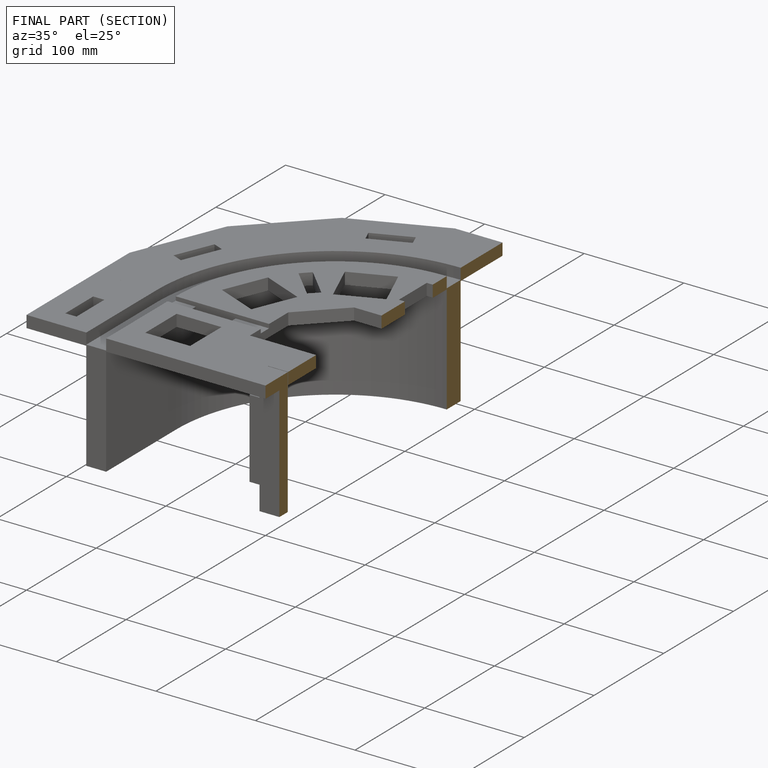
[diagram: finished part — half-section view (interior)]
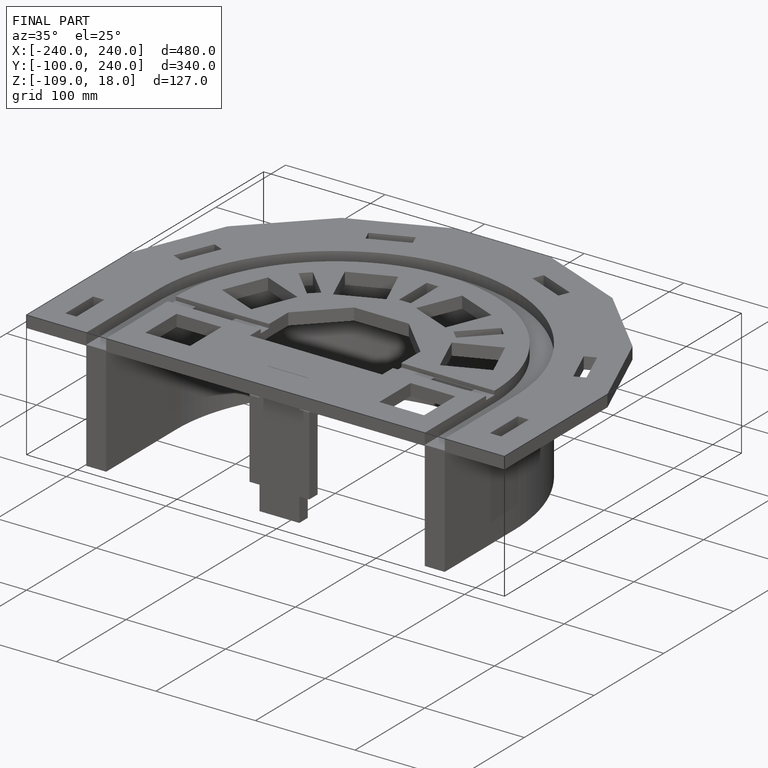
[diagram: finished part — iso view with bounding-box wireframe]
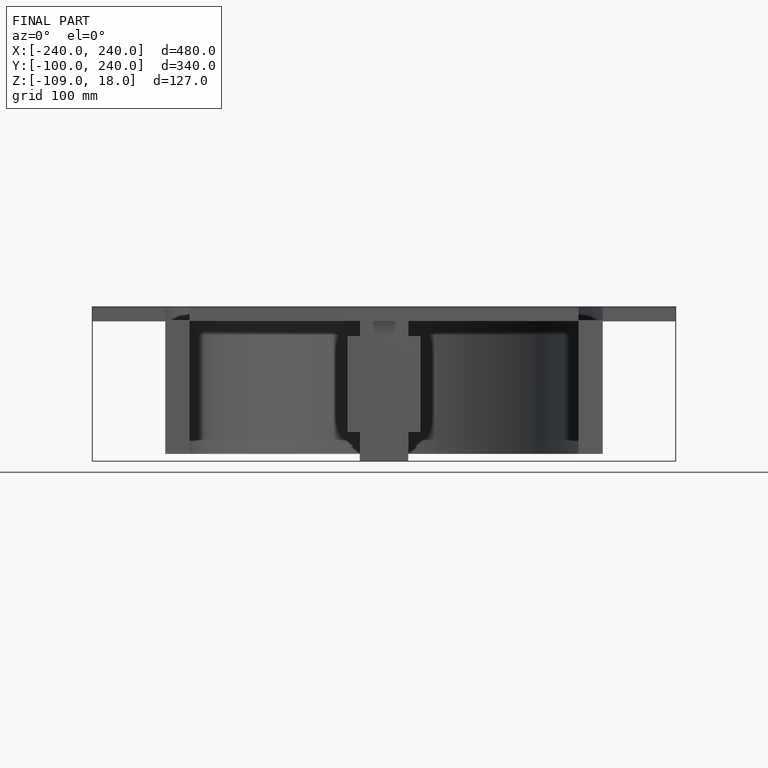
[diagram: finished part — front view with bounding-box wireframe]
